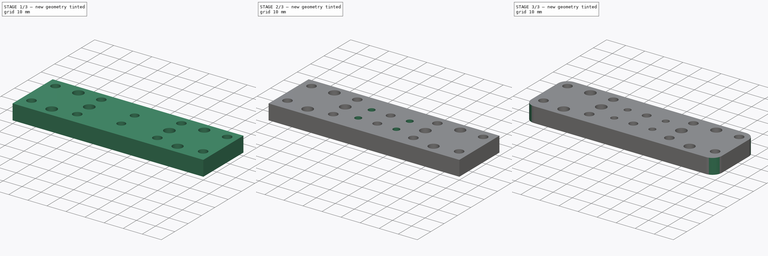
[diagram: build sequence overview — one tinted view per stage of 3, left to right]
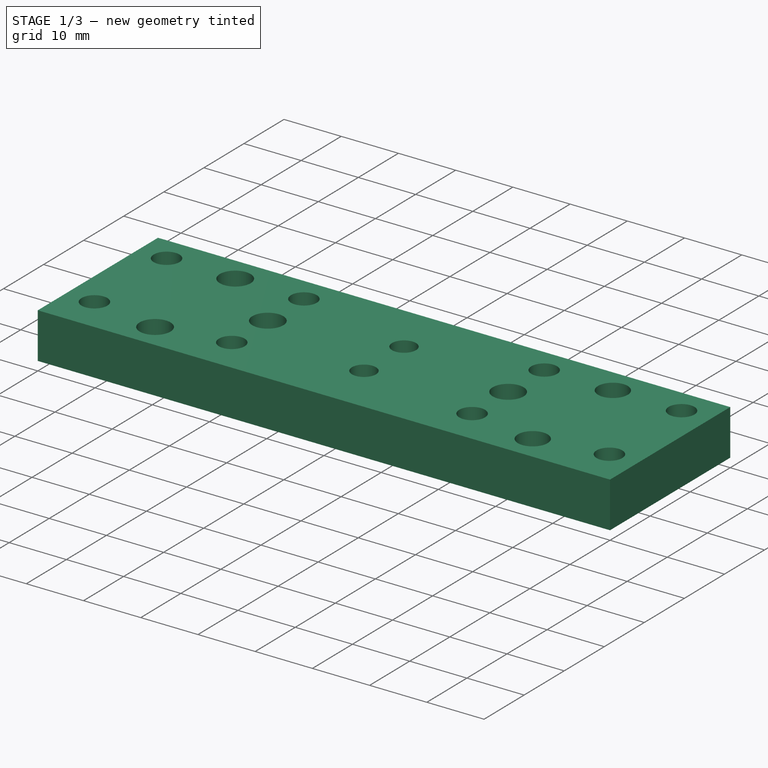
[diagram: stage 1 of 3 — iso view after this stage's code; geometry added in this stage tinted green]
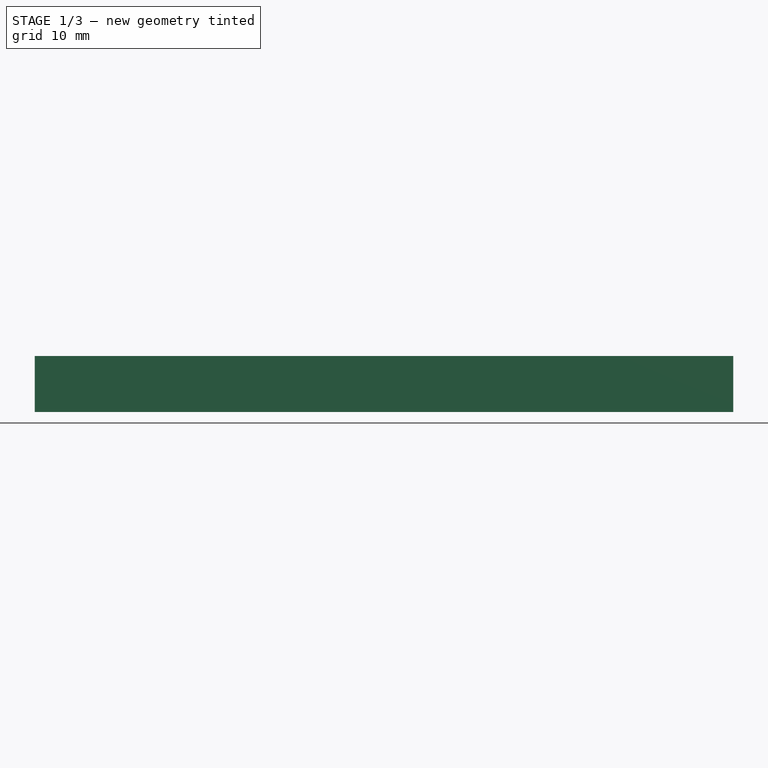
[diagram: stage 1 of 3 — front view after this stage's code; geometry added in this stage tinted green]
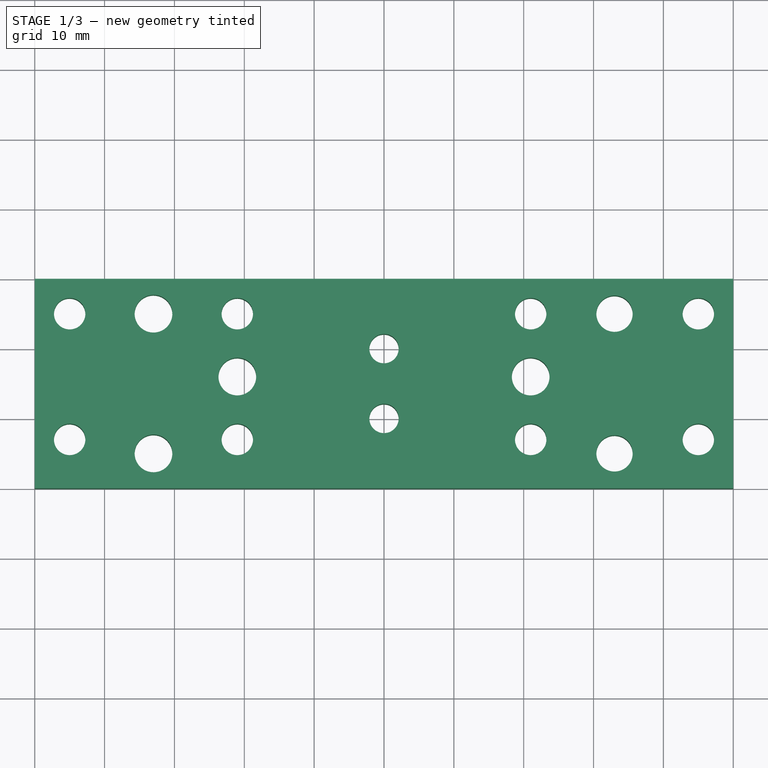
[diagram: stage 1 of 3 — top view after this stage's code; geometry added in this stage tinted green]
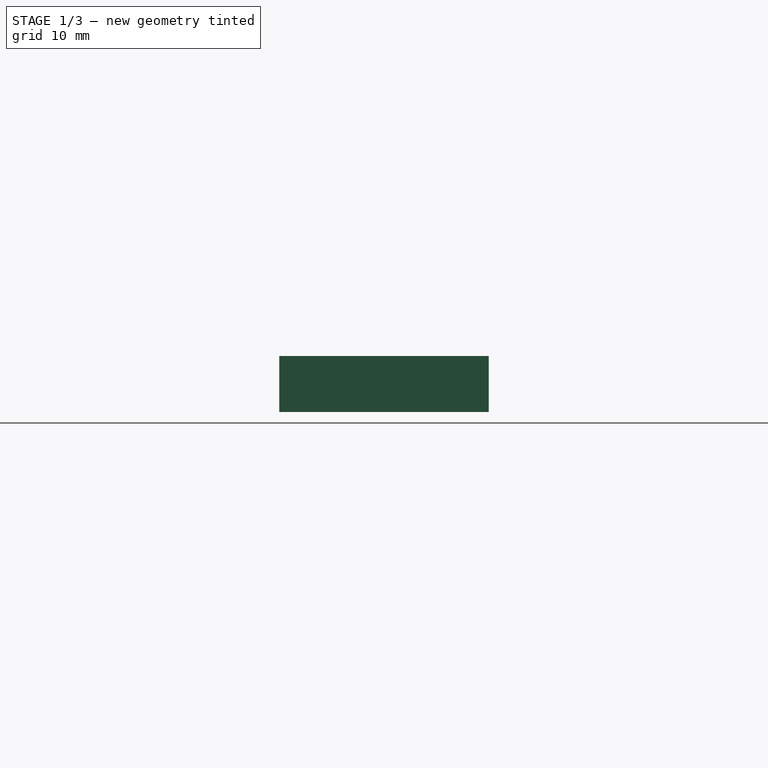
[diagram: stage 1 of 3 — right view after this stage's code; geometry added in this stage tinted green]
FCSTD DOCUMENT  (FreeCAD 0.16R6707 (Git))
Label: spindle support plate
License: All rights reserved
LicenseURL: http://en.wikipedia.org/wiki/All_rights_reserved
objects: Sketcher::SketchObject×4, PartDesign::Pocket×3, PartDesign::Pad×1, PartDesign::Fillet×1
note: 13 computed .brp shape members not serialized (recipe doc carries the construction recipe); baked Part::Feature solids carry a one-line shape summary decoded from their .brp

FEATURE [Sketcher::SketchObject] Sketch
  sketch-geometry (4):
    g0: LineSegment StartX=-50 StartY=50 StartZ=0 EndX=50 EndY=50 EndZ=0
    g1: LineSegment StartX=50 StartY=50 StartZ=0 EndX=50 EndY=20 EndZ=0
    g2: LineSegment StartX=50 StartY=20 StartZ=0 EndX=-50 EndY=20 EndZ=0
    g3: LineSegment StartX=-50 StartY=20 StartZ=0 EndX=-50 EndY=50 EndZ=0
  constraints (10):
    c: Coincident(g0,g1)
    c: Coincident(g1,g2)
    c: Coincident(g2,g3)
    c: Coincident(g3,g0)
    c: Horizontal(g0)
    c: Horizontal(g2)
    c: Vertical(g1)
    c: Vertical(g3)
    c: Symmetric(g0,g0,g-2)
    c: DistanceX(g0,g0) = 100
FEATURE [PartDesign::Pad] Pad
  Length = 8
  Length2 = 100
  Sketch = -> Sketch
  Type = 0
FEATURE [Sketcher::SketchObject] Sketch001
  Placement = pos=(0,0,8) rot=(0,0,1;0rad)
  Support = -> Pad [Face6]
  sketch-geometry (34):
    g0: LineSegment [constr] StartX=-45 StartY=45 StartZ=0 EndX=45 EndY=45 EndZ=0
    g1: LineSegment [constr] StartX=45 StartY=45 StartZ=0 EndX=45 EndY=-45 EndZ=0
    g2: LineSegment [constr] StartX=-45 StartY=-45 StartZ=0 EndX=-45 EndY=45 EndZ=0
    g3: LineSegment [constr] StartX=-21 StartY=27 StartZ=0 EndX=21 EndY=27 EndZ=0
    g4: LineSegment [constr] StartX=21 StartY=27 StartZ=0 EndX=21 EndY=-27 EndZ=0
    g5: LineSegment [constr] StartX=-21 StartY=-27 StartZ=0 EndX=-21 EndY=27 EndZ=0
    g6: Circle CenterX=-21 CenterY=45 CenterZ=0 NormalX=0 NormalY=0 NormalZ=1 Radius=2.25
    g7: Circle CenterX=-45 CenterY=27 CenterZ=0 NormalX=0 NormalY=0 NormalZ=1 Radius=2.25
    g8: Circle CenterX=-45 CenterY=45 CenterZ=0 NormalX=0 NormalY=0 NormalZ=1 Radius=2.25
    g9: Circle CenterX=-21 CenterY=27 CenterZ=0 NormalX=0 NormalY=0 NormalZ=1 Radius=2.25
    g10: Circle CenterX=21 CenterY=27 CenterZ=0 NormalX=0 NormalY=0 NormalZ=1 Radius=2.25
    g11: Circle CenterX=21 CenterY=45 CenterZ=0 NormalX=0 NormalY=0 NormalZ=1 Radius=2.25
    g12: Circle CenterX=45 CenterY=27 CenterZ=0 NormalX=0 NormalY=0 NormalZ=1 Radius=2.25
    g13: Circle CenterX=45 CenterY=45 CenterZ=0 NormalX=0 NormalY=0 NormalZ=1 Radius=2.25
    g14: LineSegment [constr] StartX=-50 StartY=51 StartZ=0 EndX=-16 EndY=51 EndZ=0
    g15: LineSegment [constr] StartX=-16 StartY=51 StartZ=0 EndX=-16 EndY=21 EndZ=0
    g16: LineSegment [constr] StartX=-16 StartY=21 StartZ=0 EndX=-50 EndY=21 EndZ=0
    g17: LineSegment [constr] StartX=-50 StartY=21 StartZ=0 EndX=-50 EndY=51 EndZ=0
    g18: LineSegment [constr] StartX=-33 StartY=67.8937 StartZ=0 EndX=-33 EndY=-55.8987 EndZ=0
    g19: LineSegment [constr] StartX=33 StartY=60.0001 StartZ=0 EndX=33 EndY=-50 EndZ=0
    g20: Circle CenterX=-33 CenterY=45 CenterZ=0 NormalX=0 NormalY=0 NormalZ=1 Radius=2.7
    g21: Circle CenterX=-33 CenterY=25 CenterZ=0 NormalX=0 NormalY=0 NormalZ=1 Radius=2.7
    g22: Circle CenterX=33 CenterY=45 CenterZ=0 NormalX=0 NormalY=0 NormalZ=1 Radius=2.6
    g23: Circle CenterX=33 CenterY=25 CenterZ=0 NormalX=0 NormalY=0 NormalZ=1 Radius=2.6
    g24: LineSegment [constr] StartX=-43 StartY=55 StartZ=0 EndX=-23 EndY=55 EndZ=0
    g25: LineSegment [constr] StartX=-23 StartY=55 StartZ=0 EndX=-23 EndY=15 EndZ=0
    g26: LineSegment [constr] StartX=-23 StartY=15 StartZ=0 EndX=-43 EndY=15 EndZ=0
    g27: LineSegment [constr] StartX=-43 StartY=15 StartZ=0 EndX=-43 EndY=55 EndZ=0
    g28: LineSegment [constr] StartX=-60 StartY=36 StartZ=0 EndX=59.9989 EndY=36 EndZ=0
    g29: Circle CenterX=-21 CenterY=36 CenterZ=0 NormalX=0 NormalY=0 NormalZ=1 Radius=2.7
    g30: Circle CenterX=21 CenterY=36 CenterZ=0 NormalX=0 NormalY=0 NormalZ=1 Radius=2.7
    g31: LineSegment [constr] StartX=-56.1432 StartY=-36 StartZ=0 EndX=70 EndY=-36 EndZ=0
    g32: Circle CenterX=0 CenterY=30 CenterZ=0 NormalX=0 NormalY=0 NormalZ=1 Radius=2.1
    g33: Circle CenterX=0 CenterY=40 CenterZ=0 NormalX=0 NormalY=0 NormalZ=1 Radius=2.1
  constraints (86):
    c: Coincident(g0,g1)
    c: Coincident(g2,g0)
    c: Vertical(g1)
    c: Vertical(g2)
    c: Symmetric(g0,g0,g-2)
    c: DistanceX(g0,g0) = 90
    c: DistanceY(g2,g2) = 90
    c: Coincident(g3,g4)
    c: Coincident(g5,g3)
    c: Horizontal(g3)
    c: Vertical(g4)
    c: Vertical(g5)
    c: Symmetric(g3,g3,g-2)
    c: DistanceY(g4,g4) = 54
    c: DistanceX(g3,g3) = 42
    c: PointOnObject(g6,g0)
    c: PointOnObject(g7,g2)
    c: Coincident(g8,g0)
    c: Coincident(g9,g3)
    c: Coincident(g10,g3)
    c: PointOnObject(g11,g0)
    c: PointOnObject(g12,g1)
    c: Coincident(g13,g0)
    c: Equal(g8,g6)
    c: Equal(g6,g9)
    c: Equal(g9,g7)
    c: Equal(g12,g10)
    c: Equal(g10,g11)
    c: Equal(g11,g13)
    c: Radius(g8) = 2.25
    c: PointOnObject(g7,g3)
    c: PointOnObject(g6,g5)
    c: PointOnObject(g11,g4)
    c: PointOnObject(g12,g3)
    c: Coincident(g14,g15)
    c: Coincident(g15,g16)
    c: Coincident(g16,g17)
    c: Coincident(g17,g14)
    c: Horizontal(g14)
    c: Horizontal(g16)
    c: Vertical(g15)
    c: Vertical(g17)
    c: DistanceX(g14,g0) = 5
    c: DistanceY(g0,g14) = 6
    c: DistanceY(g17,g17) = 30
    c: DistanceX(g14,g14) = 34
    c: Vertical(g18)
    c: Symmetric(g0,g6,g18)
    c: Vertical(g19)
    c: Symmetric(g11,g0,g19)
    c: PointOnObject(g20,g0)
    c: PointOnObject(g20,g18)
    c: PointOnObject(g21,g18)
    c: DistanceY(g21,g20) = 20
    c: PointOnObject(g22,g0)
    c: PointOnObject(g22,g19)
    c: PointOnObject(g23,g19)
    c: DistanceY(g23,g22) = 20
    c: Equal(g20,g21)
    c: Equal(g22,g23)
    c: Radius(g20) = 2.7
    c: Coincident(g24,g25)
    c: Coincident(g25,g26)
    c: Coincident(g26,g27)
    c: Coincident(g27,g24)
    c: Horizontal(g24)
    c: Horizontal(g26)
    c: Vertical(g25)
    c: Vertical(g27)
    c: Symmetric(g24,g24,g18)
    c: DistanceY(g20,g24) = 10
    c: DistanceX(g24,g24) = 20
    c: DistanceY(g27,g27) = 40
    c: Horizontal(g28)
    c: Symmetric(g0,g12,g28)
    c: PointOnObject(g29,g28)
    c: PointOnObject(g30,g28)
    c: Symmetric(g29,g30,g-2)
    c: Equal(g29,g30)
    c: Radius(g29) = 2.7
    c: DistanceX(g29,g30) = 42
    c: Horizontal(g31)
    c: PointOnObject(g32,g-2)
    c: Equal(g33,g32)
    c: DistanceY(g-1,g32) = 30
    c: DistanceY(g-1,g33) = 40
FEATURE [PartDesign::Pocket] Pocket
  Length = 5
  Sketch = -> Sketch001
  Type = 1
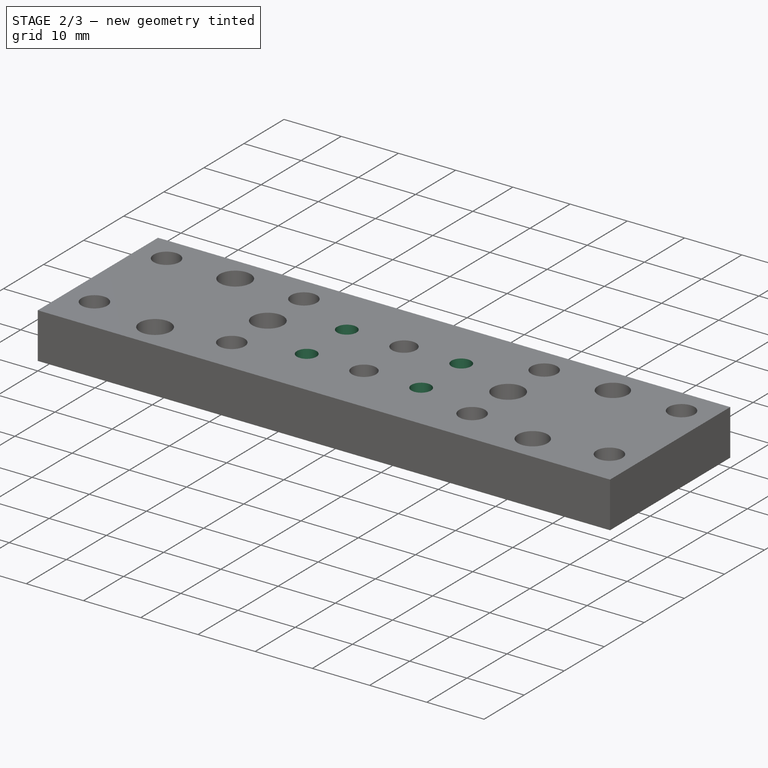
[diagram: stage 2 of 3 — iso view after this stage's code; geometry added in this stage tinted green]
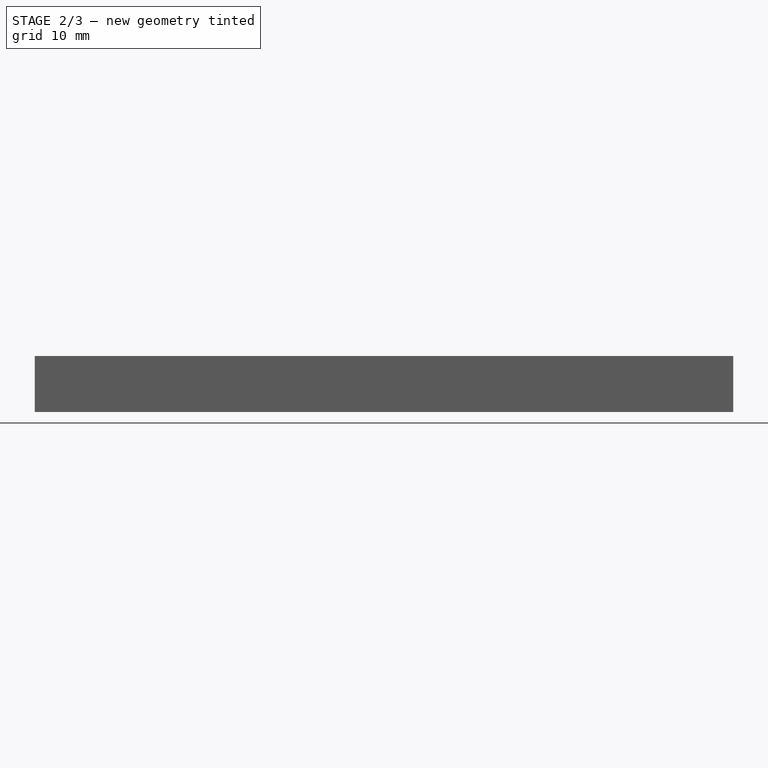
[diagram: stage 2 of 3 — front view after this stage's code; geometry added in this stage tinted green]
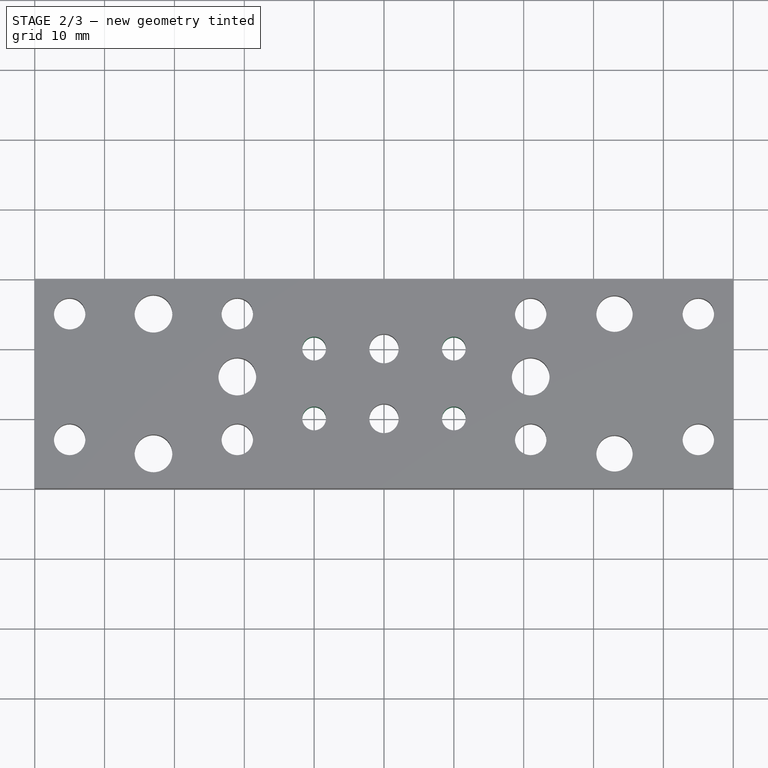
[diagram: stage 2 of 3 — top view after this stage's code; geometry added in this stage tinted green]
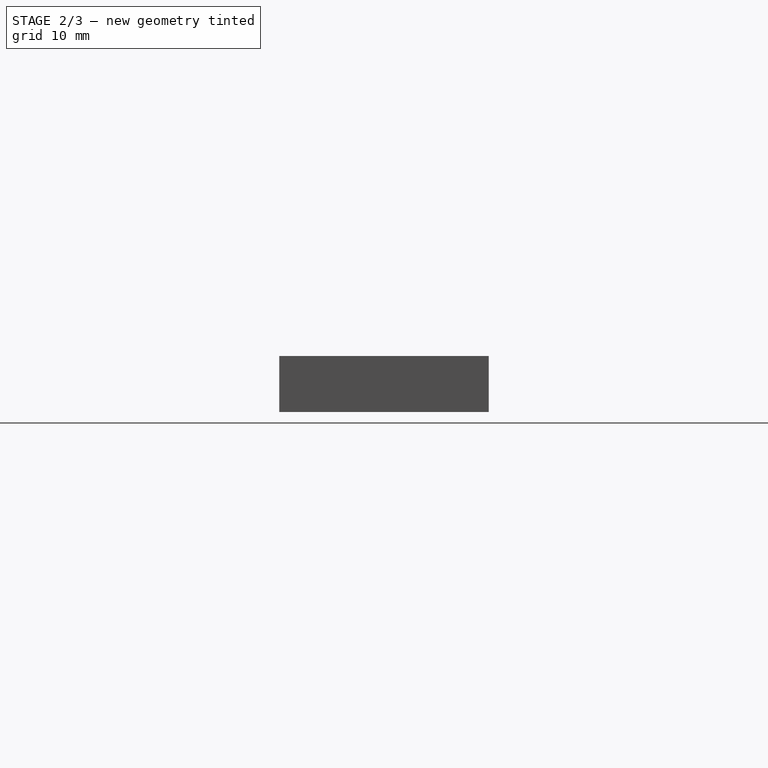
[diagram: stage 2 of 3 — right view after this stage's code; geometry added in this stage tinted green]
FEATURE [Sketcher::SketchObject] Sketch002
  Placement = pos=(0,0,8) rot=(0,0,1;0rad)
  Support = -> Pocket [Face5]
  sketch-geometry (4):
    g0: Circle CenterX=-10 CenterY=30 CenterZ=0 NormalX=0 NormalY=0 NormalZ=1 Radius=1.7
    g1: Circle CenterX=-10 CenterY=40 CenterZ=0 NormalX=0 NormalY=0 NormalZ=1 Radius=1.7
    g2: Circle CenterX=10 CenterY=40 CenterZ=0 NormalX=0 NormalY=0 NormalZ=1 Radius=1.7
    g3: Circle CenterX=10 CenterY=30 CenterZ=0 NormalX=0 NormalY=0 NormalZ=1 Radius=1.7
  constraints (3):
    c: Equal(g3,g0)
    c: Equal(g1,g2)
    c: Radius(g1) = 1.7
FEATURE [PartDesign::Pocket] Pocket001
  Length = 5
  Sketch = -> Sketch002
  Type = 1
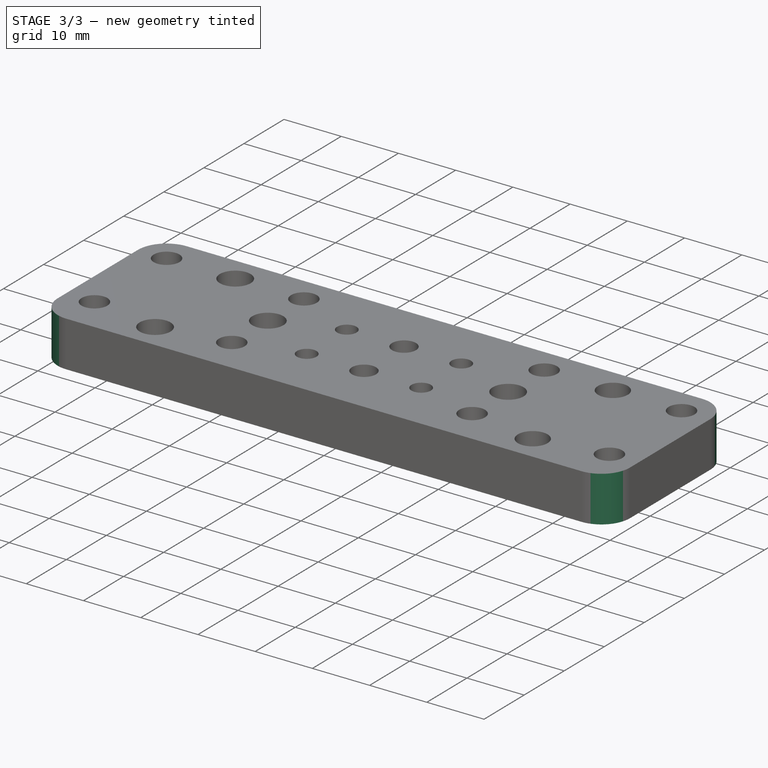
[diagram: stage 3 of 3 — iso view after this stage's code; geometry added in this stage tinted green]
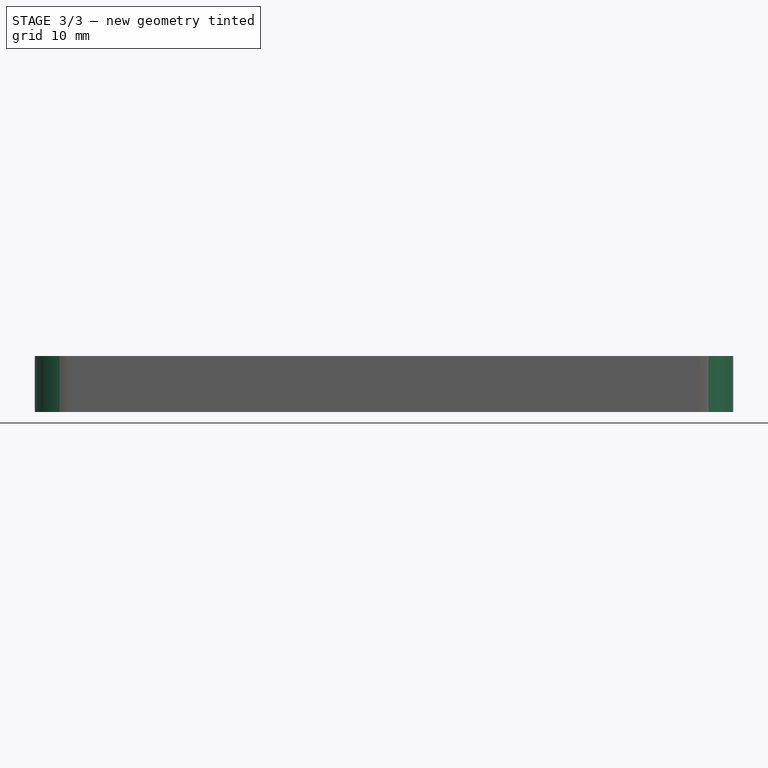
[diagram: stage 3 of 3 — front view after this stage's code; geometry added in this stage tinted green]
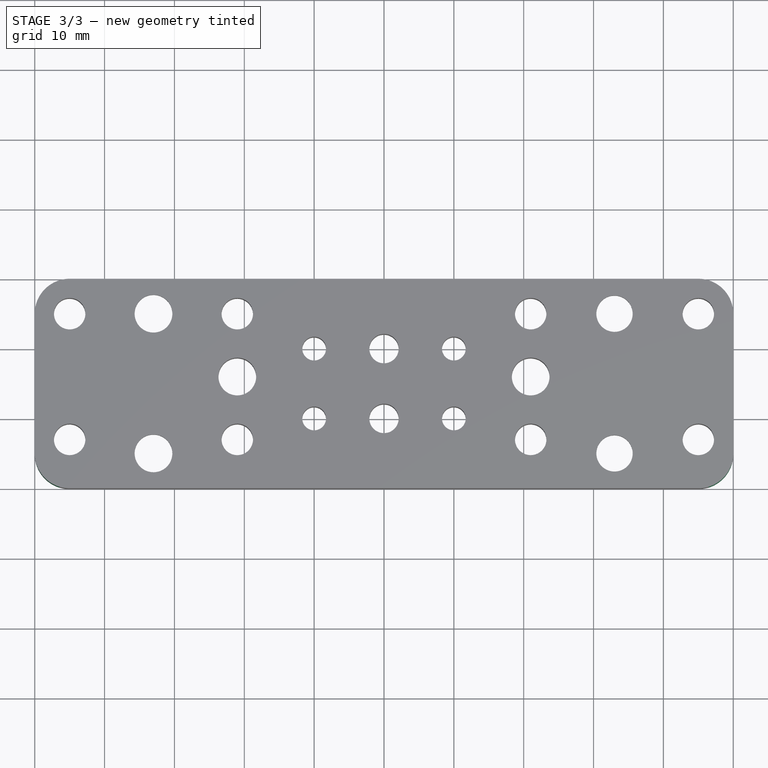
[diagram: stage 3 of 3 — top view after this stage's code; geometry added in this stage tinted green]
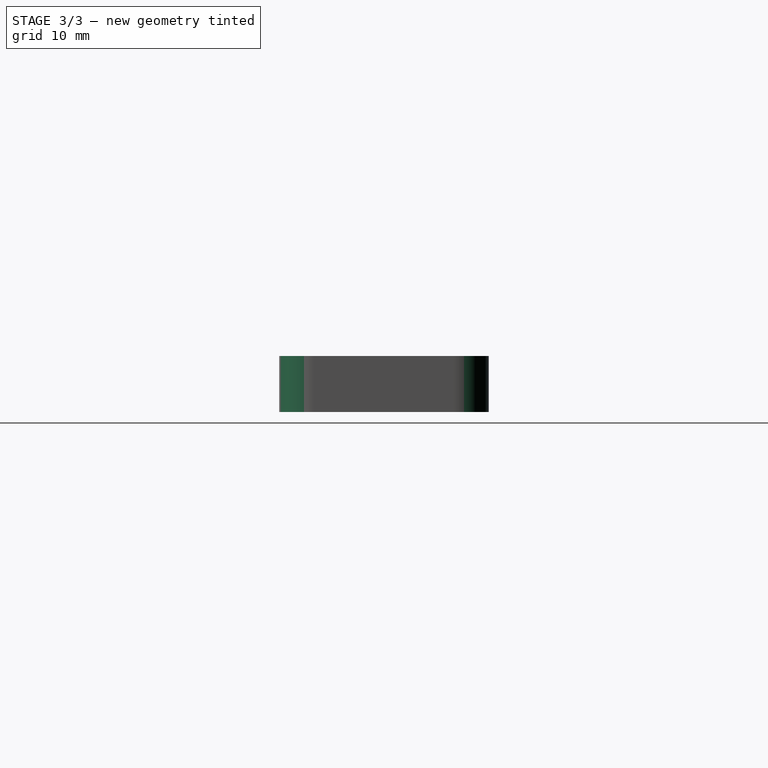
[diagram: stage 3 of 3 — right view after this stage's code; geometry added in this stage tinted green]
FEATURE [Sketcher::SketchObject] Sketch003
  ExternalGeometry = -> [Pocket001]
  Placement = pos=(0,0,0) rot=(1,0,0;3.14159rad)
  Support = -> Pocket001 [Face4]
  sketch-geometry (4):
    g0: Circle CenterX=-33 CenterY=-25 CenterZ=0 NormalX=0 NormalY=0 NormalZ=1 Radius=4.6
    g1: Circle CenterX=33 CenterY=-45 CenterZ=0 NormalX=0 NormalY=0 NormalZ=1 Radius=4.6
    g2: Circle CenterX=33 CenterY=-25 CenterZ=0 NormalX=0 NormalY=0 NormalZ=1 Radius=4.6
    g3: Circle CenterX=-33 CenterY=-45 CenterZ=0 NormalX=0 NormalY=0 NormalZ=1 Radius=4.6
  constraints (7):
    c: Equal(g1,g2)
    c: Equal(g2,g3)
    c: Radius(g0) = 4.6
    c: Coincident(g3,g-4)
    c: Coincident(g0,g-3)
    c: Coincident(g2,g-5)
    c: Coincident(g1,g-6)
FEATURE [PartDesign::Pocket] Pocket002
  Length = 5.3
  Sketch = -> Sketch003
  Type = 0
FEATURE [PartDesign::Fillet] Fillet
  Base = -> Pocket002 [Edge5,Edge8,Edge1,Edge2]
  Radius = 5
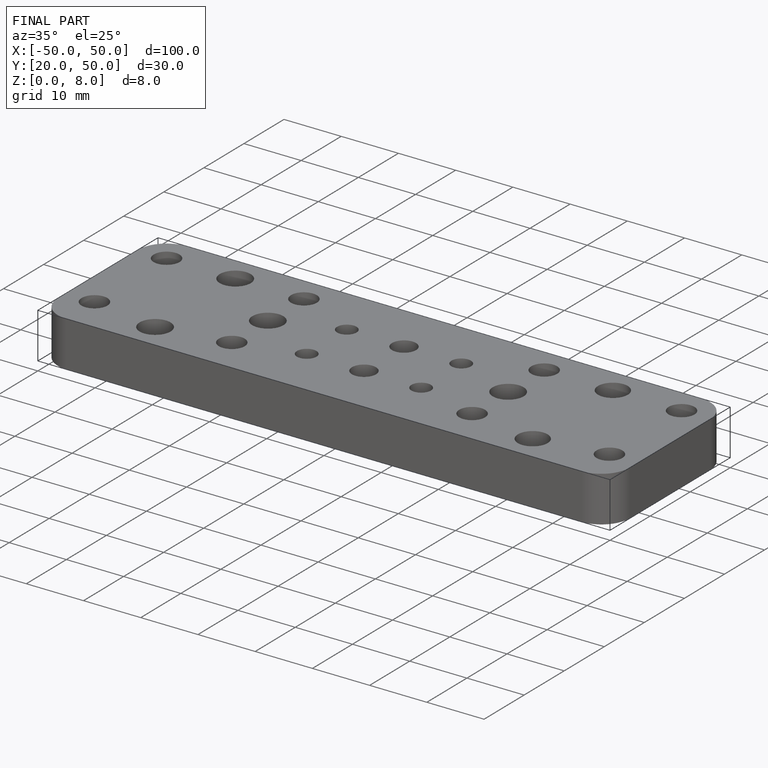
[diagram: finished part — iso view with bounding-box wireframe]
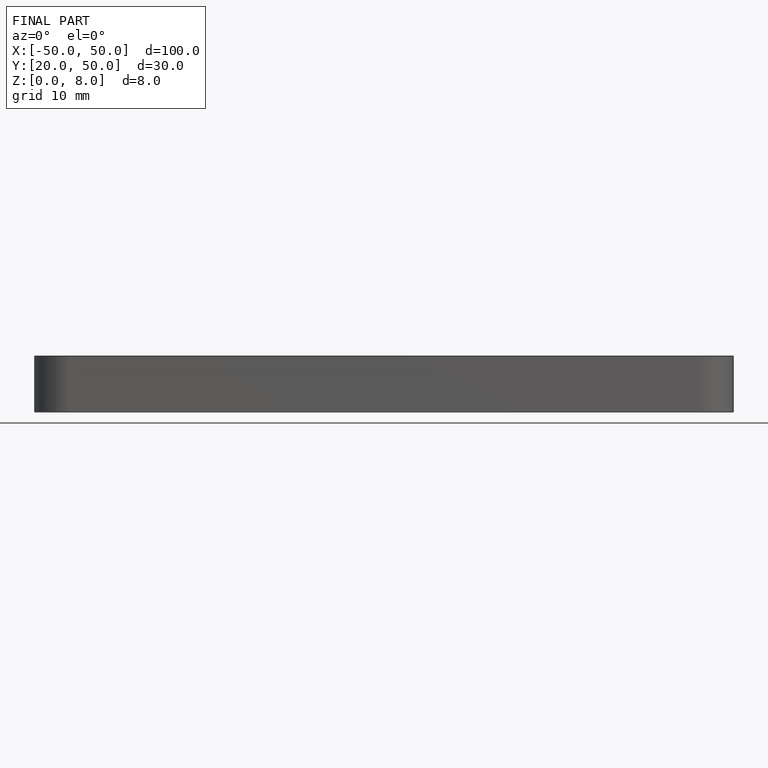
[diagram: finished part — front view with bounding-box wireframe]
